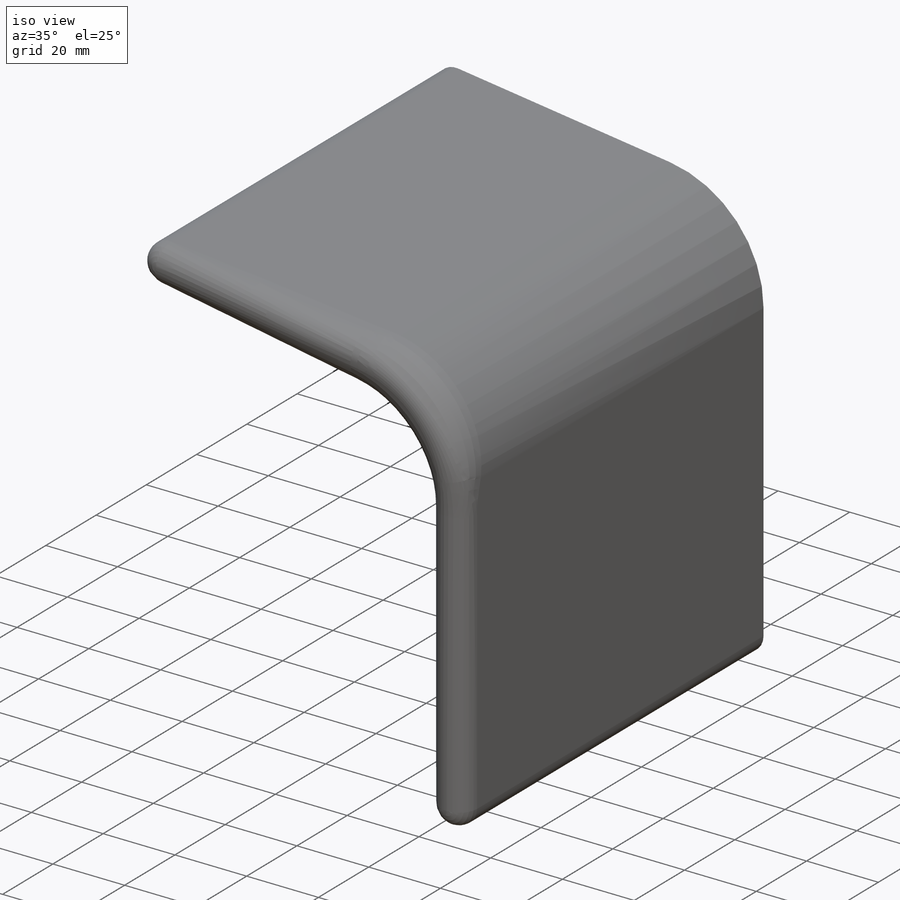
[diagram: iso view]
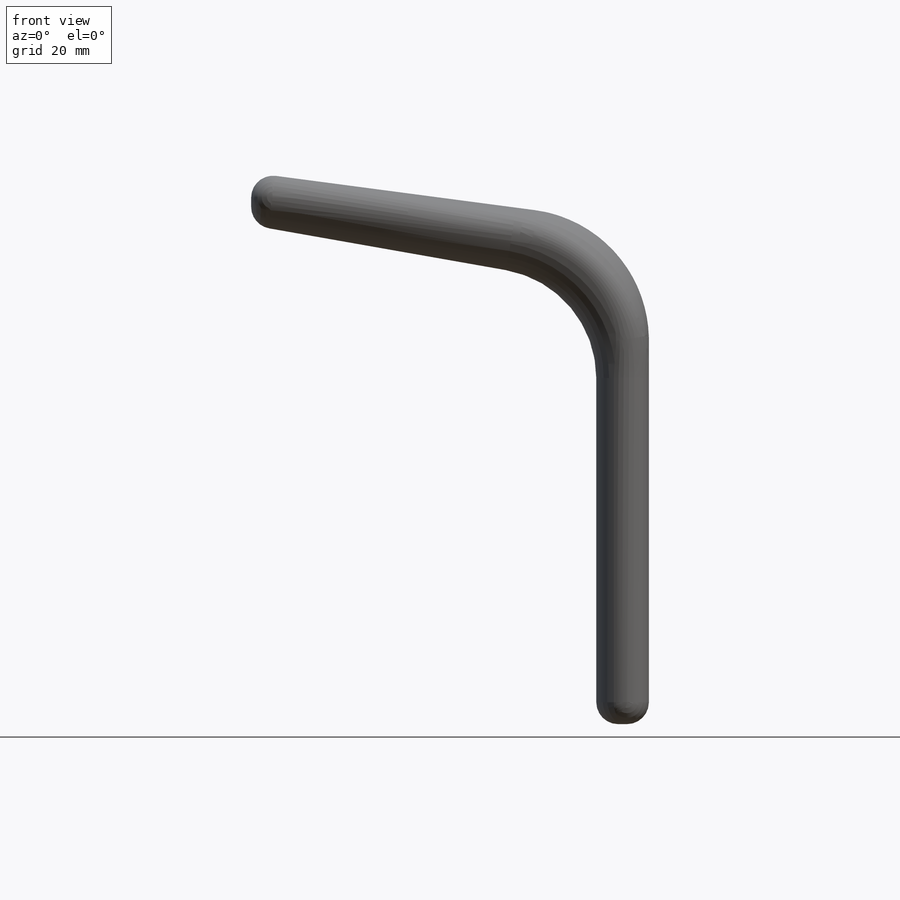
[diagram: front view]
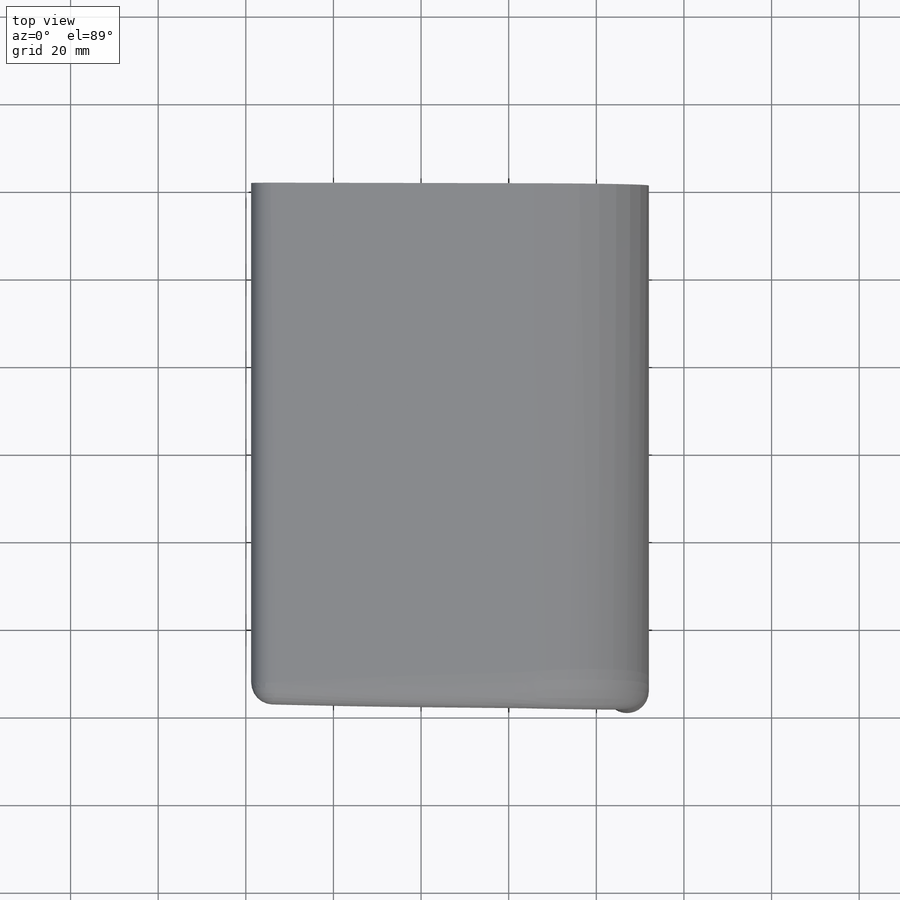
[diagram: top view]
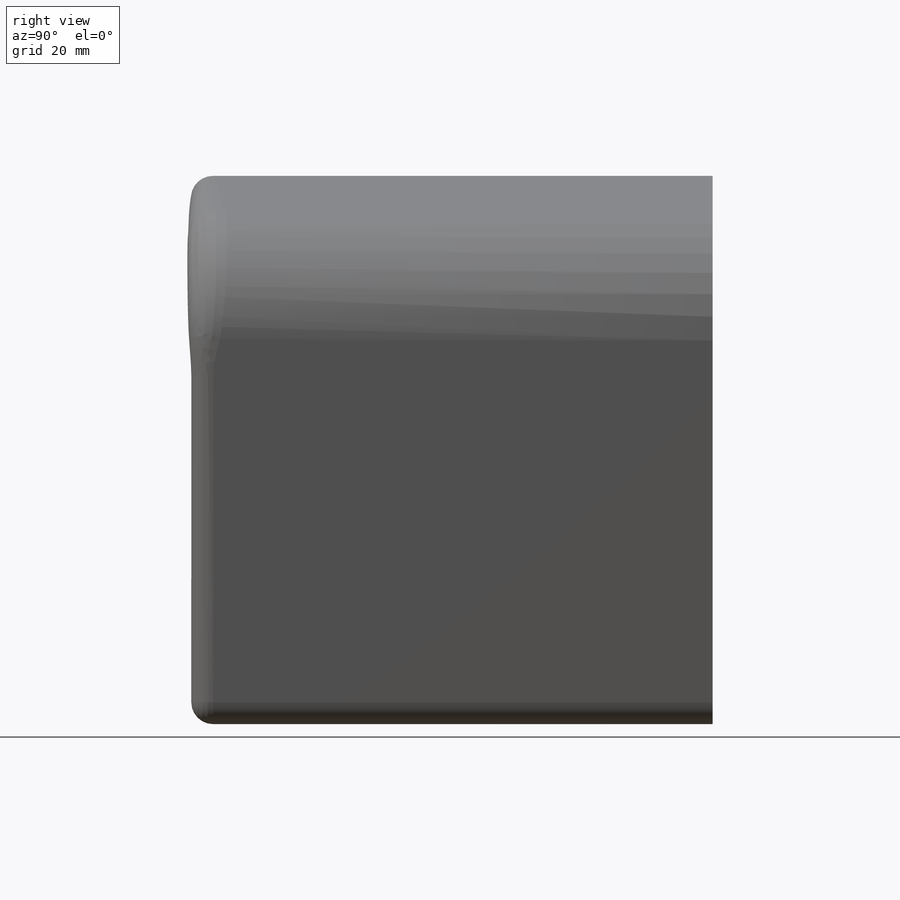
[diagram: right view]
SOLIDWORKS PART (.sldprt)
format: sldprt  version: not decoded by parser v0  size: 272,896 bytes
history: native  units: mm
features: fillet x7, plane x3, material x1, sketch x1, extrude x1 (+10 scaffold rows collapsed)
feature tree (23):
  scaffold x10  (default folders/planes/origin — collapsed)
  material  "Matériau <non spécifié>"
  plane  "Plan de face"
  plane  "Plan de dessus"
  plane  "Plan de droite"
  sketch  "Esquisse1"  dims[c1.D1=12.0mm c1.D2=12.0mm c1.D3=80.0mm c1.D4=100.0mm c1.D5=80.0mm c2.D5=100.0deg c2.D6=~125.891854mm]
  extrude  "Boss.-Extru.1"  Depth=120mm
  fillet  "Congé2"  Radius=25mm
  fillet  "Congé4"  Radius=30mm
  fillet  "Congé6"  Radius=10mm
  fillet  "Congé7"  Radius=10mm
  fillet  "Congé8"  Radius=5mm
  fillet  "Congé11"  Radius=5mm
  fillet  "Congé12"  Radius=5mm
decode coverage: 9 of 9 modeling features carry decoded parameters
note: ~ marks probable driven/reference dimensions
note: suppression state not decoded; provenance and decode notes live in map.json
